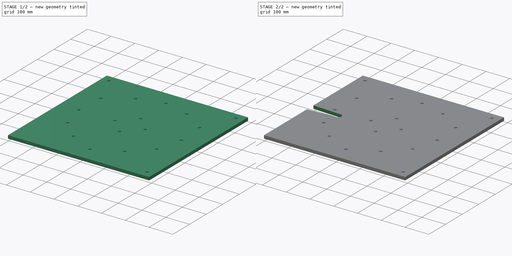
[diagram: build sequence overview — one tinted view per stage of 2, left to right]
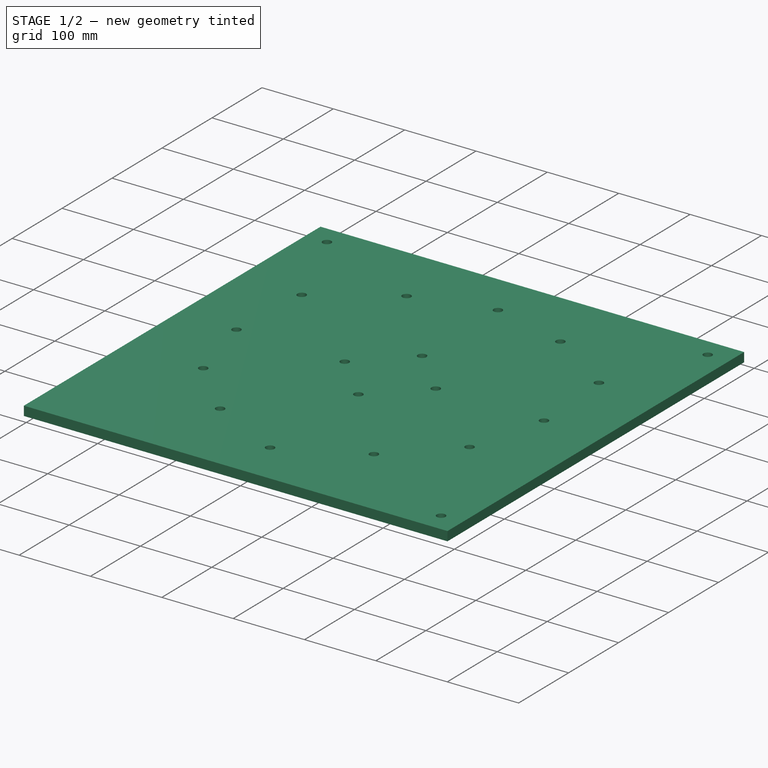
[diagram: stage 1 of 2 — iso view after this stage's code; geometry added in this stage tinted green]
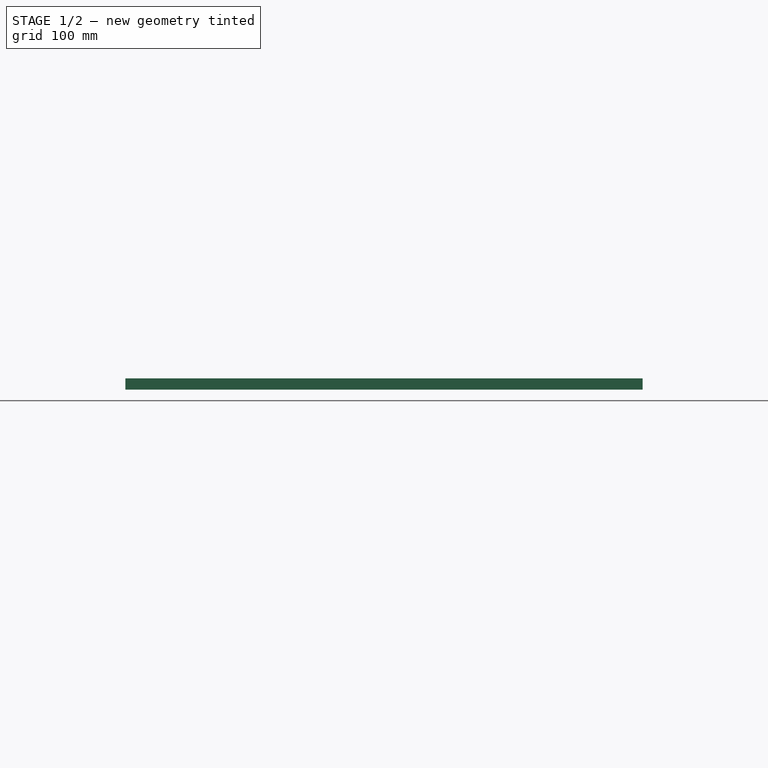
[diagram: stage 1 of 2 — front view after this stage's code; geometry added in this stage tinted green]
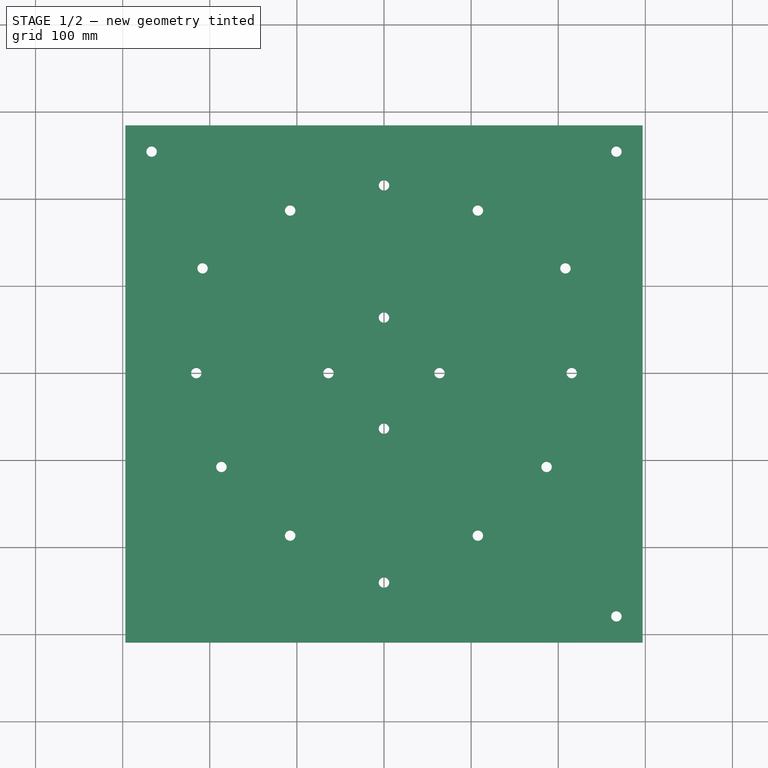
[diagram: stage 1 of 2 — top view after this stage's code; geometry added in this stage tinted green]
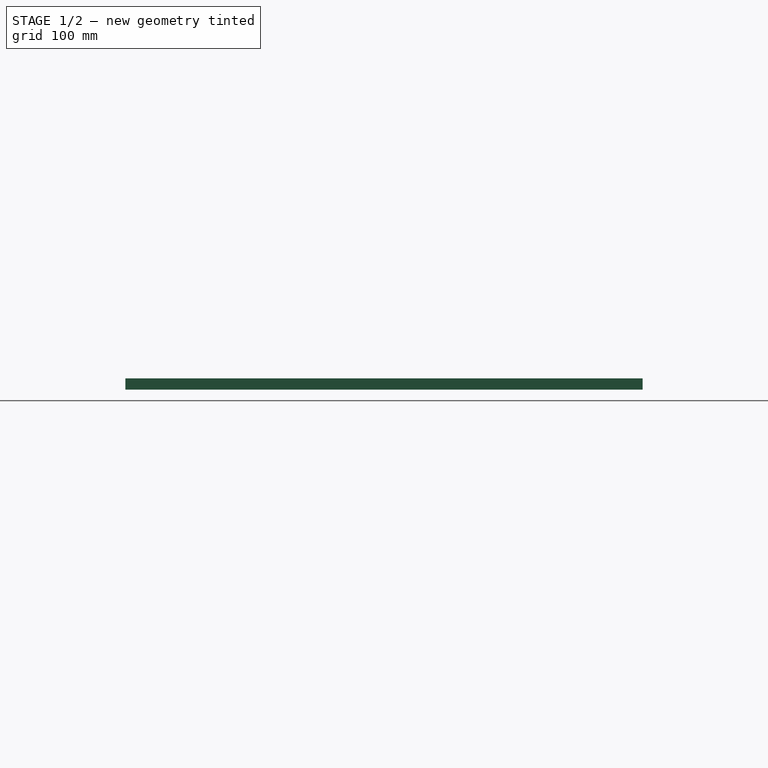
[diagram: stage 1 of 2 — right view after this stage's code; geometry added in this stage tinted green]
FCSTD DOCUMENT  (FreeCAD 0.21R33771 (Git))
Label: Stator_Mold_Lid
License: All rights reserved
LicenseURL: http://en.wikipedia.org/wiki/All_rights_reserved
objects: Spreadsheet::Sheet×1, PartDesign::Plane×1, Sketcher::SketchObject×1, App::Link×1, PartDesign::SubShapeBinder×1, PartDesign::FeatureBase×1, PartDesign::Pocket×1, PartDesign::Body×1
note: 7 computed .brp shape members not serialized (recipe doc carries the construction recipe); baked Part::Feature solids carry a one-line shape summary decoded from their .brp
EXTERNAL_REF file=../../../Master_of_Puppets.FCStd obj=Alternator
EXTERNAL_REF file=../../../Master_of_Puppets.FCStd obj=Spreadsheet
EXTERNAL_REF file=Stator_Mold_BoltShaftPattern_Circular.FCStd obj=Body
EXTERNAL_REF file=Stator_Mold_BoltShaftPattern_Hexagonal.FCStd obj=Body

FEATURE [Spreadsheet::Sheet] Spreadsheet
  cells = A1='Inputs; A2='StatorThickness; B2(StatorThickness)==Master_of_Puppets#Spreadsheet.StatorThickness; A3='CalculatedWindTurbineShape; B3(CalculatedWindTurbineShape)==Master_of_Puppets#Spreadsheet.CalculatedWindTurbineShape; A4='StatorMoldSideLength; B4(StatorMoldSideLength)==Master_of_Puppets#Alternator.StatorMoldSideLength; A5='StatorMoldSurroundEdgeRadius; B5(StatorMoldSurroundEdgeRadius)==Master_of_Puppets#Alternator.StatorMoldSurroundEdgeRadius; A6='OutsideCoilEdgeRadius; B6(OutsideCoilEdgeRadius)==Master_of_Puppets#Alternator.OutsideCoilEdgeRadius; A7='WireTubeDiameter; B7(WireTubeDiameter)==Master_of_Puppets#Alternator.WireTubeDiameter; A8='RadiusOfResinAroundWireTube; B8(RadiusOfResinAroundWireTube)==Master_of_Puppets#Alternator.RadiusOfResinAroundWireTube; A9='LidNotchDegrees; B9(LidNotchDegrees)==Master_of_Puppets#Alternator.LidNotchDegrees; A10='Calculated; A11='WireTubeRadius; B11(WireTubeRadius)==WireTubeDiameter / 2; A12='HalfwayBetweenCoilAndSurroundEdge; B12(HalfwayBetweenCoilAndSurroundEdge)==(StatorMoldSurroundEdgeRadius + OutsideCoilEdgeRadius) / 2; A13='PocketAngle; B13(PocketAngle)=6; A14='PocketY; B14(PocketY)==abs(sin(LidNotchDegrees) * HalfwayBetweenCoilAndSurroundEdge); A15='NotchRadius; B15(NotchRadius)==WireTubeRadius + RadiusOfResinAroundWireTube; A16='TubePaddingFactor; B16(TubePaddingFactor)=1.05; A17='PocketX; B17(PocketX)==abs(cos(LidNotchDegrees) * HalfwayBetweenCoilAndSurroundEdge); A18='PocketLength; B18(PocketLength)==StatorMoldSideLength / 2 - PocketX; C18='HexagonalStatorOuterInradius; A19='BoltShaftPattern; A20='SmallBoltShaftPattern; B20(SmallBoltShaftPattern)==Stator_Mold_BoltShaftPattern_Circular#<<Stator_Mold_BoltShaftPattern>>._self; A21='LargeBoltShaftPattern; B21(LargeBoltShaftPattern)==Stator_Mold_BoltShaftPattern_Hexagonal#<<Stator_Mold_BoltShaftPattern>>._self; A22='BoltShaftPattern; B22(BoltShaftPattern)==CalculatedWindTurbineShape == <<Star>> ? LargeBoltShaftPattern : SmallBoltShaftPattern
FEATURE [PartDesign::Plane] DatumPlane
  Length = 712.38
  MapMode = 2
  Placement = pos=(0,0,13) rot=(0,0,1;0rad)
  ResizeMode = 0
  Width = 712.38
  expr: .Placement.Base.z = Spreadsheet.StatorThickness
FEATURE [Sketcher::SketchObject] Sketch004  label="Sketch"
  FullyConstrained = true
  MapMode = 5
  Placement = pos=(0,0,13) rot=(0,0,1;0rad)
  Support = -> [DatumPlane]
  expr: Constraints[13] = Spreadsheet.NotchRadius
  expr: Constraints[14] = Spreadsheet.PocketAngle / 2
  expr: Constraints[19] = Spreadsheet.PocketY
  expr: Constraints[20] = Spreadsheet.PocketX
  expr: Constraints[3] = Spreadsheet.PocketLength
  sketch-geometry (7):
    g0: LineSegment StartX=-178.743 StartY=-44.5171 StartZ=0 EndX=-296.825 EndY=-50.7056 EndZ=0
    g1: LineSegment StartX=-178.743 StartY=-18.5171 StartZ=0 EndX=-296.825 EndY=-12.3287 EndZ=0
    g2: ArcOfCircle CenterX=-178.743 CenterY=-31.5171 CenterZ=0 NormalX=0 NormalY=0 NormalZ=1 AngleXU=0 Radius=13 StartAngle=4.71239 EndAngle=7.85398
    g3: LineSegment StartX=-178.743 StartY=-31.5171 StartZ=0 EndX=-296.825 EndY=-31.5171 EndZ=0
    g4: LineSegment StartX=-296.825 StartY=-12.3287 StartZ=0 EndX=-296.825 EndY=-31.5171 EndZ=0
    g5: LineSegment StartX=-296.825 StartY=-31.5171 StartZ=0 EndX=-296.825 EndY=-50.7056 EndZ=0
    g6: LineSegment StartX=-178.743 StartY=-31.5171 StartZ=0 EndX=-165.743 EndY=-31.5171 EndZ=0
  constraints (21):
    c: Coincident(g1,g2)
    c: Coincident(g0,g2)
    c: Coincident(g3,g2)
    c: Distance(g3) = 118.082
    c: Coincident(g1,g4)
    c: Coincident(g4,g3)
    c: Coincident(g4,g5)
    c: Coincident(g5,g0)
    c: Horizontal(g3)
    c: Angle(g2) = 3.14159
    c: Coincident(g6,g2)
    c: PointOnObject(g6,g2)
    c: Horizontal(g6)
    c: Distance(g6) = 13
    c: Angle(g3,g0) = 0.0523599
    c: Vertical(g5)
    c: Vertical(g4)
    c: Equal(g4,g5)
    c: Vertical(g2,g0)
    c: DistanceY(g2,g-1) = 31.5171
    c: DistanceX(g2,g-1) = 178.743
FEATURE [App::Link] Link  label="Stator_Mold_BoltShaftPattern"
  LinkedObject = -> <external Stator_Mold_BoltShaftPattern_Circular.FCStd>#Body
  expr: LinkedObject = Spreadsheet.BoltShaftPattern
FEATURE [PartDesign::SubShapeBinder] Binder
  BindCopyOnChange = 0
  BindMode = 0
  ClaimChildren = false
  Context = -> Pocket003Body [Binder.]
  Fuse = false
  MakeFace = true
  OffsetFill = false
  OffsetIntersection = false
  OffsetJoinType = 0
  OffsetOpenResult = false
  PartialLoad = false
  Refine = true
  Relative = true
  Support = -> [Link]
  _Version = 2
FEATURE [PartDesign::FeatureBase] BaseFeature
  BaseFeature = -> Binder
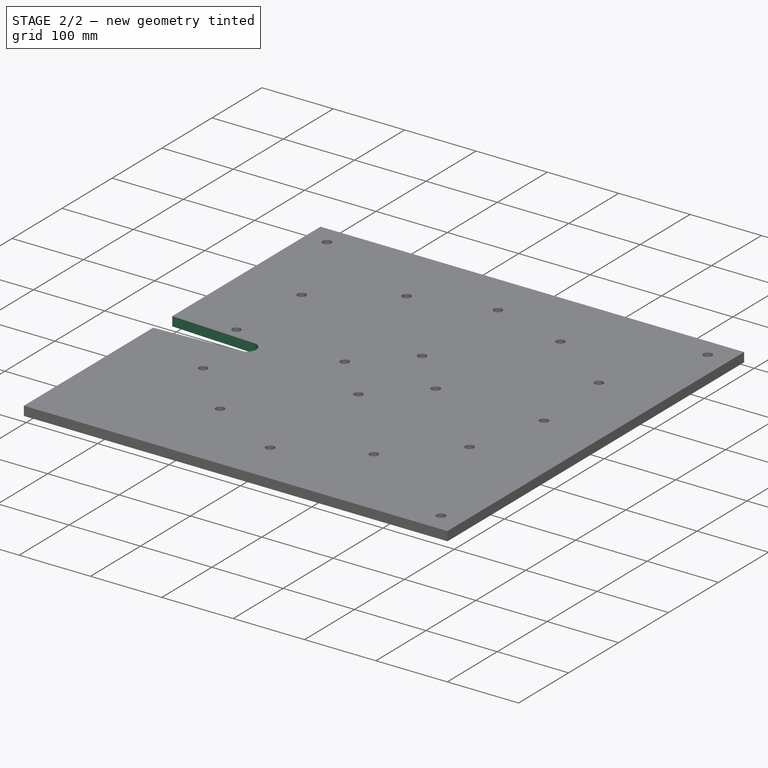
[diagram: stage 2 of 2 — iso view after this stage's code; geometry added in this stage tinted green]
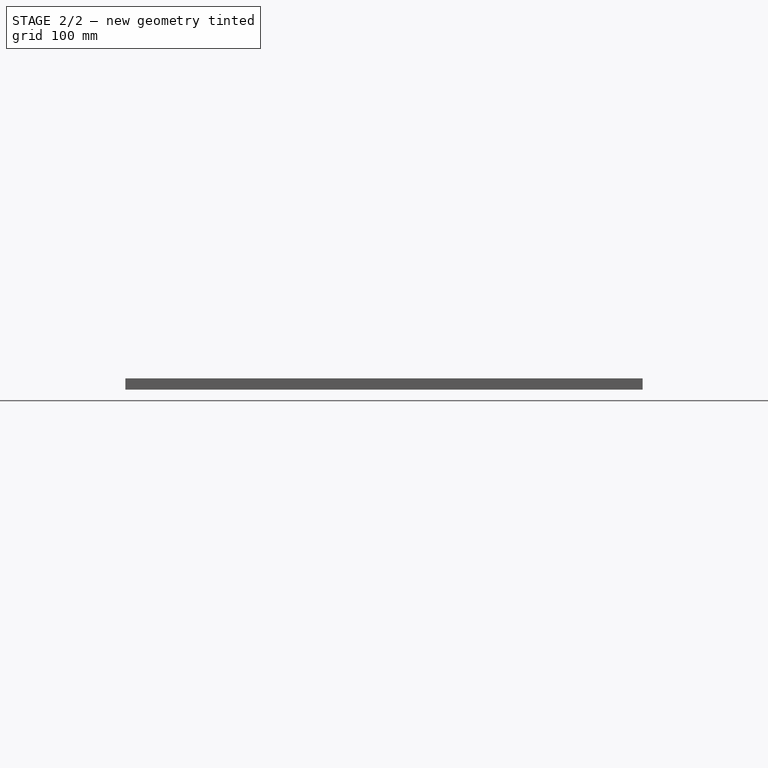
[diagram: stage 2 of 2 — front view after this stage's code; geometry added in this stage tinted green]
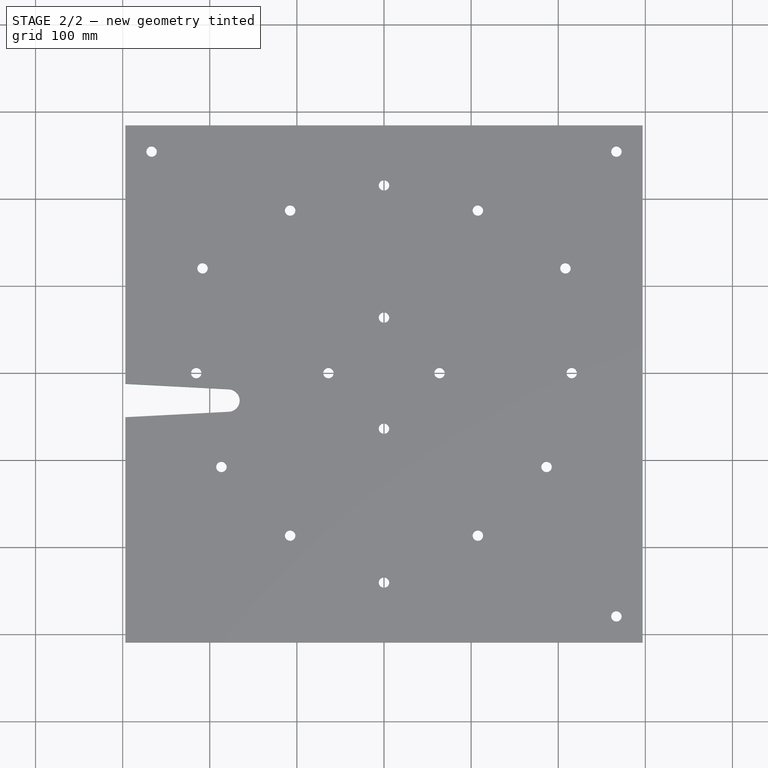
[diagram: stage 2 of 2 — top view after this stage's code; geometry added in this stage tinted green]
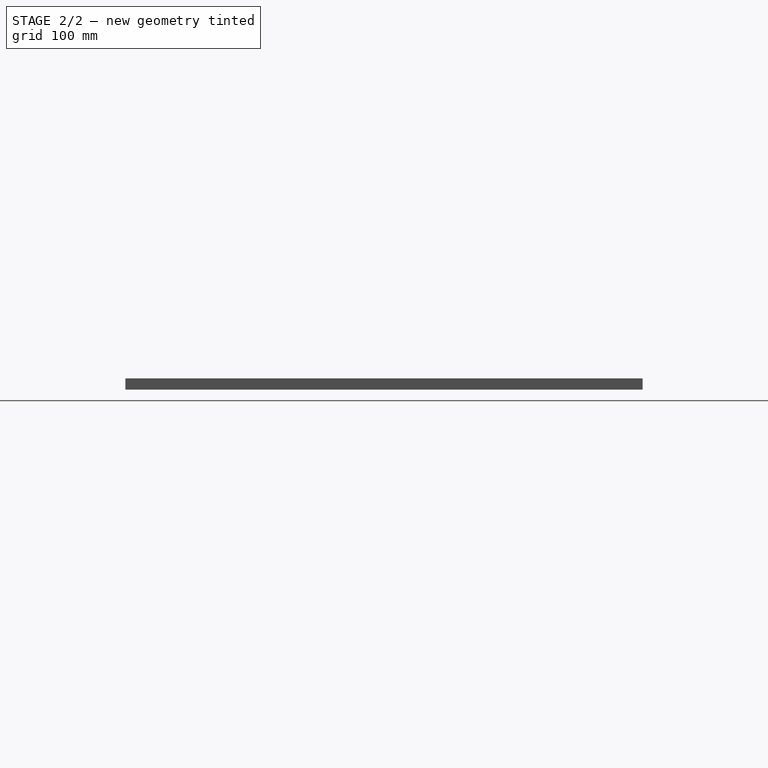
[diagram: stage 2 of 2 — right view after this stage's code; geometry added in this stage tinted green]
FEATURE [PartDesign::Pocket] Pocket003  label="Pocket"
  AllowMultiFace = false
  BaseFeature = -> BaseFeature
  Direction = (0,0,-1)
  Length = 5
  Length2 = 100
  Profile = -> Sketch004
  Type = 1
FEATURE [PartDesign::Body] Pocket003Body  label="Stator_Mold_Lid"
  BaseFeature = -> Binder
  Group = -> [BaseFeature,Sketch004,Pocket003,DatumPlane,Binder]
  Openafpm_Flat = true
  Origin = -> Origin001
  Tip = -> Pocket003
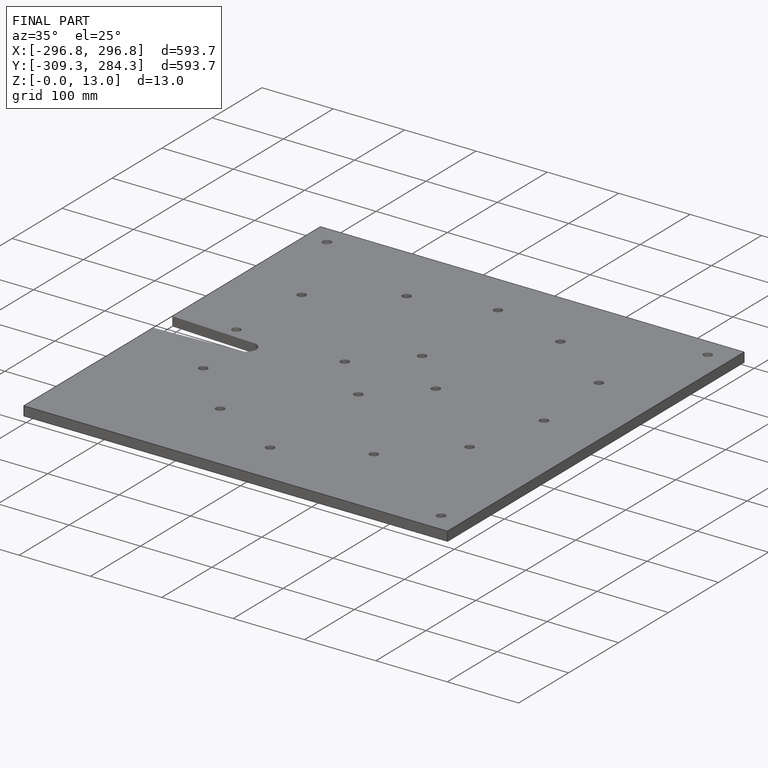
[diagram: finished part — iso view with bounding-box wireframe]
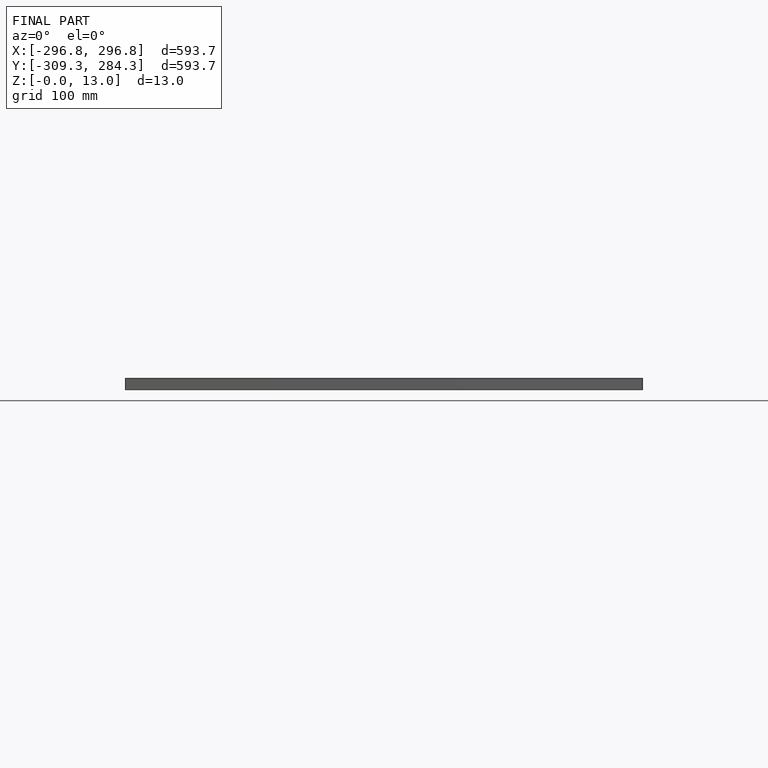
[diagram: finished part — front view with bounding-box wireframe]
